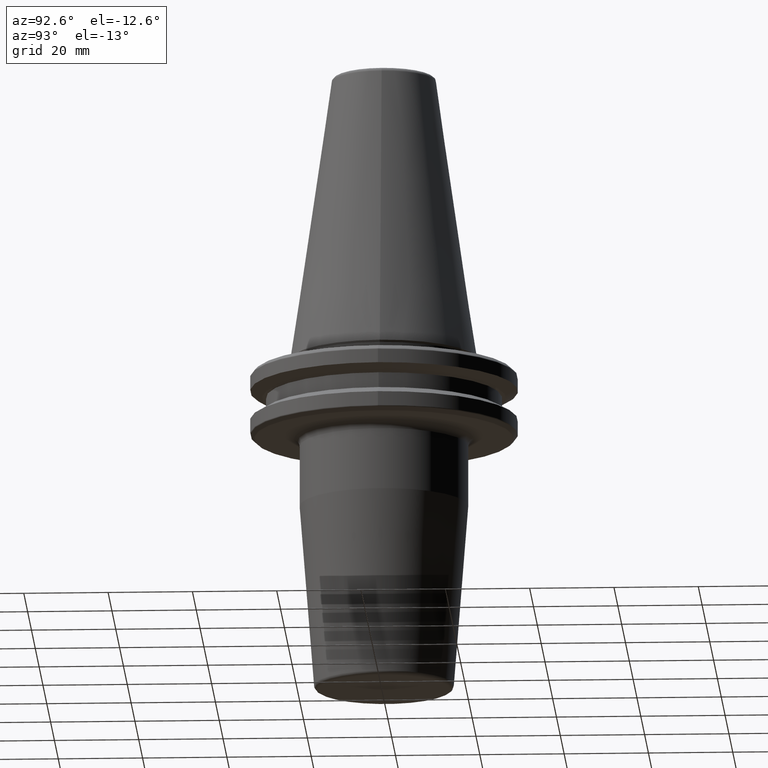
[diagram: clean part render]
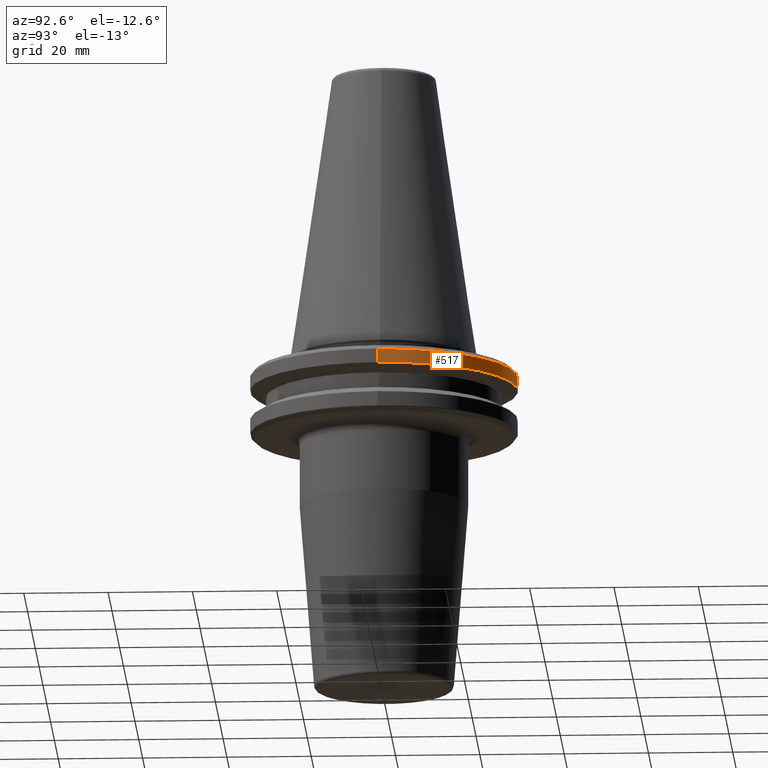
[diagram: same view with one face highlighted and labeled with its STEP entity id]
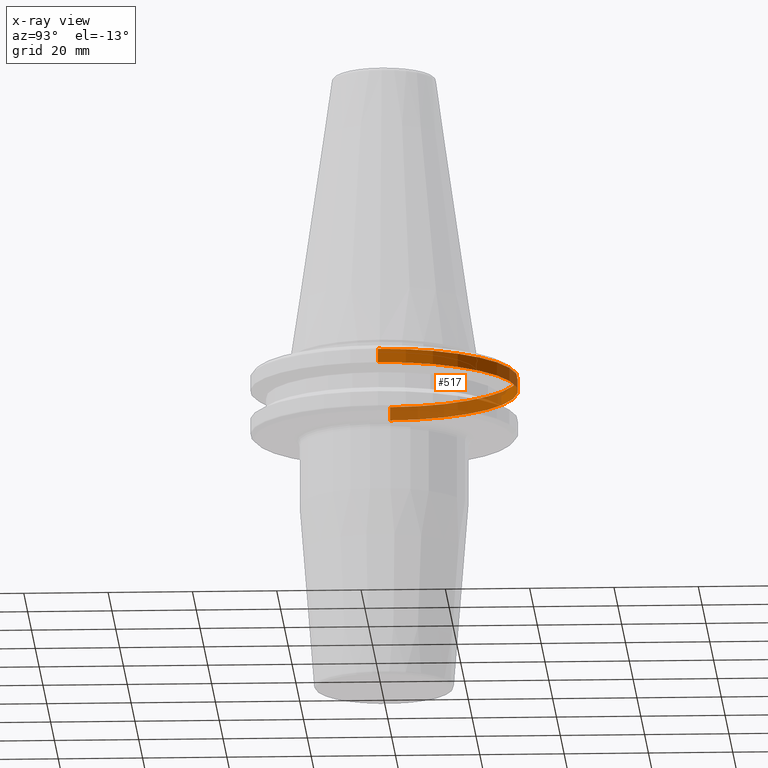
[diagram: x-ray of the same camera — body ghosted, the highlighted face saturated]
A machine part, auxiliary view. The second image highlights one B-rep face of the part: STEP entity #517.
The next image is the same camera in x-ray: the body ghosted, the highlighted face saturated — about 42% of this face is hidden behind the body in this view.
In plain terms, the highlighted cylindrical surface (partial cylindrical patch) has radius 31.75 mm, axis along (-0, -0, 1).
Its self-contained STEP definition (entity closure, byte-faithful):
#6 = AXIS2_PLACEMENT_3D ( 'NONE', #247, #908, #345 ) ;
#24 = VECTOR ( 'NONE', #159, 1000.000000000000000 ) ;
#56 = CARTESIAN_POINT ( 'NONE',  ( 31.75000000000000000, 0.0000000000000000000, 113.5216080541959500 ) ) ;
#68 = DIRECTION ( 'NONE',  ( -0.0000000000000000000, -0.0000000000000000000, 1.000000000000000000 ) ) ;
#94 = VERTEX_POINT ( 'NONE', #415 ) ;
#114 = EDGE_CURVE ( 'NONE', #94, #314, #135, .T. ) ;
#135 = LINE ( 'NONE', #326, #870 ) ;
#138 = DIRECTION ( 'NONE',  ( 1.000000000000000000, 0.0000000000000000000, 0.0000000000000000000 ) ) ;
#159 = DIRECTION ( 'NONE',  ( -0.0000000000000000000, -0.0000000000000000000, 1.000000000000000000 ) ) ;
#207 = ORIENTED_EDGE ( 'NONE', *, *, #114, .T. ) ;
#247 = CARTESIAN_POINT ( 'NONE',  ( 0.0000000000000000000, 0.0000000000000000000, 113.5216080541959500 ) ) ;
#299 = VERTEX_POINT ( 'NONE', #800 ) ;
#314 = VERTEX_POINT ( 'NONE', #782 ) ;
#326 = CARTESIAN_POINT ( 'NONE',  ( -31.75000000000000000, 3.888253587292846500E-015, 113.5216080541959500 ) ) ;
#345 = DIRECTION ( 'NONE',  ( 1.000000000000000000, 0.0000000000000000000, 0.0000000000000000000 ) ) ;
#380 = DIRECTION ( 'NONE',  ( -0.0000000000000000000, -0.0000000000000000000, 1.000000000000000000 ) ) ;
#412 = CARTESIAN_POINT ( 'NONE',  ( 0.0000000000000000000, 0.0000000000000000000, -7.578163357943284800 ) ) ;
#415 = CARTESIAN_POINT ( 'NONE',  ( -31.75000000000000000, 3.888253587292846500E-015, -7.578163357943284800 ) ) ;
#462 = AXIS2_PLACEMENT_3D ( 'NONE', #412, #380, #588 ) ;
#469 = CYLINDRICAL_SURFACE ( 'NONE', #6, 31.75000000000000000 ) ;
#517 = ADVANCED_FACE ( 'NONE', ( #1257 ), #469, .T. ) ;
#588 = DIRECTION ( 'NONE',  ( 1.000000000000000000, 0.0000000000000000000, 0.0000000000000000000 ) ) ;
#607 = CARTESIAN_POINT ( 'NONE',  ( 0.0000000000000000000, 0.0000000000000000000, -4.365685424949250000 ) ) ;
#679 = CIRCLE ( 'NONE', #462, 31.75000000000000000 ) ;
#696 = EDGE_CURVE ( 'NONE', #1199, #94, #679, .T. ) ;
#782 = CARTESIAN_POINT ( 'NONE',  ( -31.75000000000000000, 3.888253587292846500E-015, -4.365685424949250000 ) ) ;
#791 = DIRECTION ( 'NONE',  ( -0.0000000000000000000, -0.0000000000000000000, 1.000000000000000000 ) ) ;
#800 = CARTESIAN_POINT ( 'NONE',  ( 31.75000000000000000, 0.0000000000000000000, -4.365685424949250000 ) ) ;
#844 = EDGE_CURVE ( 'NONE', #299, #314, #918, .T. ) ;
#870 = VECTOR ( 'NONE', #68, 1000.000000000000000 ) ;
#908 = DIRECTION ( 'NONE',  ( -0.0000000000000000000, -0.0000000000000000000, 1.000000000000000000 ) ) ;
#918 = CIRCLE ( 'NONE', #1203, 31.75000000000000000 ) ;
#939 = CARTESIAN_POINT ( 'NONE',  ( 31.75000000000000000, 0.0000000000000000000, -7.578163357943284800 ) ) ;
#986 = ORIENTED_EDGE ( 'NONE', *, *, #844, .F. ) ;
#992 = ORIENTED_EDGE ( 'NONE', *, *, #1116, .F. ) ;
#1062 = LINE ( 'NONE', #56, #24 ) ;
#1116 = EDGE_CURVE ( 'NONE', #1199, #299, #1062, .T. ) ;
#1188 = ORIENTED_EDGE ( 'NONE', *, *, #696, .T. ) ;
#1199 = VERTEX_POINT ( 'NONE', #939 ) ;
#1203 = AXIS2_PLACEMENT_3D ( 'NONE', #607, #791, #138 ) ;
#1208 = EDGE_LOOP ( 'NONE', ( #1188, #207, #986, #992 ) ) ;
#1257 = FACE_OUTER_BOUND ( 'NONE', #1208, .T. ) ;